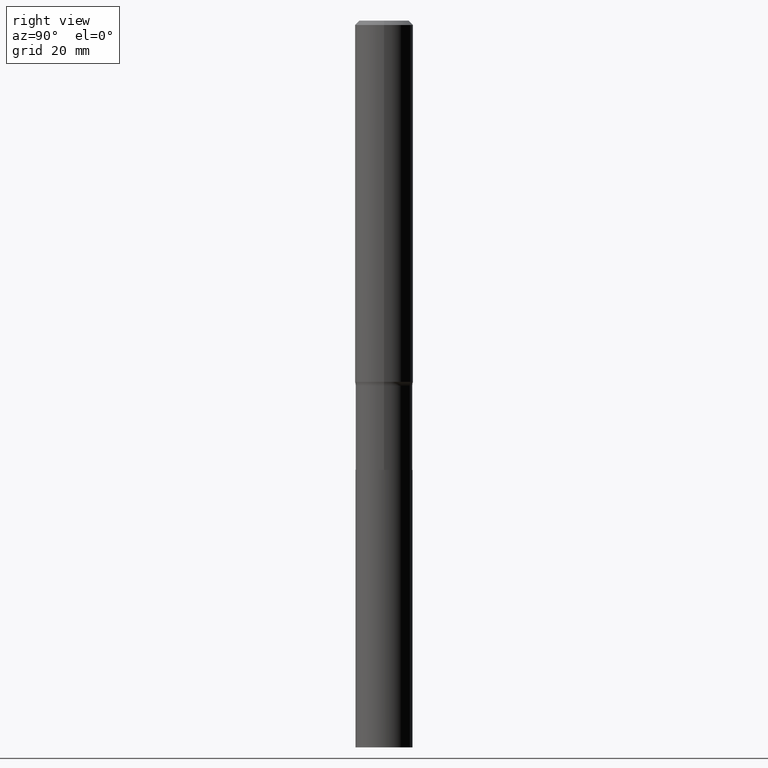
[diagram: clean part render]
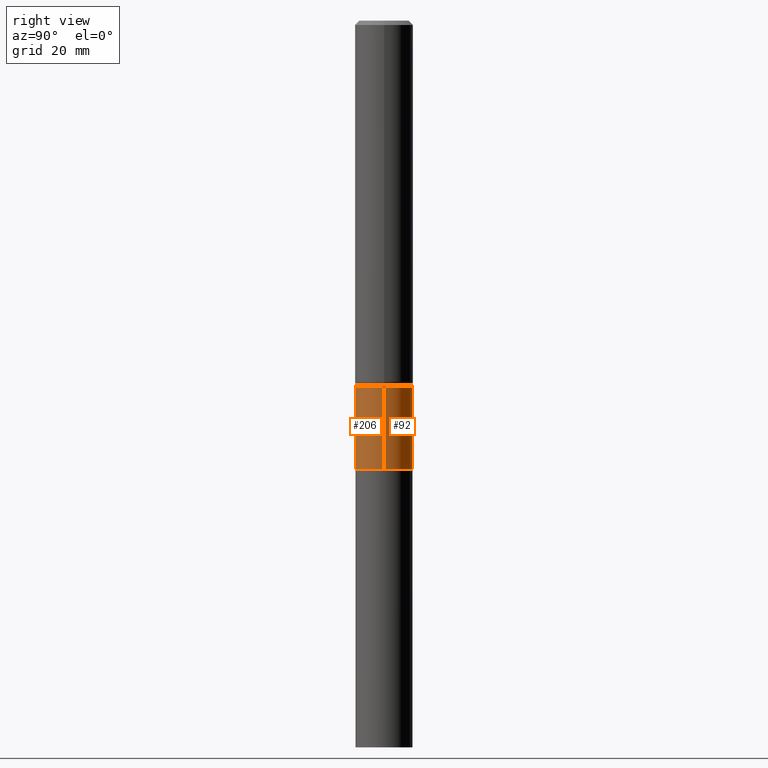
[diagram: same view with one multi-face feature highlighted, each face labeled with its STEP entity id]
A machine part, right view. The highlighted faces form ONE feature: a constant-radius fillet chain: 2 tangent blend faces with common blend radius 4.8997 mm. The faces share edges in the B-rep.
Their STEP definitions:
[1] entity #206 (Cylinder):
#1 = CARTESIAN_POINT ( 'NONE',  ( -0.1928999999999999049, -8.253980521373779940E-15, -2.471399999999999597 ) ) ;
#10 = ORIENTED_EDGE ( 'NONE', *, *, #228, .T. ) ;
#18 = VERTEX_POINT ( 'NONE', #1 ) ;
#19 = LINE ( 'NONE', #169, #68 ) ;
#33 = DIRECTION ( 'NONE',  ( -2.445468806185136597E-29, 3.491481338843145583E-15, 1.000000000000000000 ) ) ;
#44 = CIRCLE ( 'NONE', #335, 0.1928999999999999881 ) ;
#65 = DIRECTION ( 'NONE',  ( 1.000000000000000000, -6.982962677686267499E-15, 0.000000000000000000 ) ) ;
#67 = CARTESIAN_POINT ( 'NONE',  ( 7.438627014653946245E-29, -1.062038793649307721E-14, -3.041799999999999393 ) ) ;
#68 = VECTOR ( 'NONE', #345, 39.37007874015748143 ) ;
#77 = VERTEX_POINT ( 'NONE', #458 ) ;
#93 = FACE_OUTER_BOUND ( 'NONE', #372, .T. ) ;
#94 = VECTOR ( 'NONE', #309, 39.37007874015748143 ) ;
#104 = VERTEX_POINT ( 'NONE', #244 ) ;
#133 = EDGE_CURVE ( 'NONE', #104, #77, #414, .T. ) ;
#134 = CARTESIAN_POINT ( 'NONE',  ( 6.043731607605946476E-29, -8.628846980816948628E-15, -2.471399999999999597 ) ) ;
#136 = CARTESIAN_POINT ( 'NONE',  ( -0.1928999999999999881, -8.253980521373778363E-15, -3.041799999999999393 ) ) ;
#139 = ORIENTED_EDGE ( 'NONE', *, *, #416, .F. ) ;
#155 = VERTEX_POINT ( 'NONE', #136 ) ;
#167 = CARTESIAN_POINT ( 'NONE',  ( 0.1928999999999999326, -1.347013500525680471E-15, 9.406145000510357801E-30 ) ) ;
#169 = CARTESIAN_POINT ( 'NONE',  ( -0.1928999999999999326, 1.370636937281232780E-15, -9.488625789101710361E-30 ) ) ;
#184 = EDGE_CURVE ( 'NONE', #155, #18, #19, .T. ) ;
#188 = DIRECTION ( 'NONE',  ( 1.000000000000000000, -6.982962677686264344E-15, 0.000000000000000000 ) ) ;
#206 = ADVANCED_FACE ( 'NONE', ( #93 ), #279, .T. ) ;
#219 = DIRECTION ( 'NONE',  ( 1.000000000000000000, -6.982962677686267499E-15, 4.876176775795936353E-29 ) ) ;
#224 = AXIS2_PLACEMENT_3D ( 'NONE', #134, #421, #65 ) ;
#228 = EDGE_CURVE ( 'NONE', #155, #104, #44, .T. ) ;
#235 = ORIENTED_EDGE ( 'NONE', *, *, #184, .F. ) ;
#244 = CARTESIAN_POINT ( 'NONE',  ( 0.1928999999999999881, -1.196740143701875827E-14, -3.041799999999999393 ) ) ;
#279 = CYLINDRICAL_SURFACE ( 'NONE', #378, 0.1928999999999999326 ) ;
#287 = DIRECTION ( 'NONE',  ( -2.445468806185136597E-29, 3.491481338843145583E-15, 1.000000000000000000 ) ) ;
#309 = DIRECTION ( 'NONE',  ( -2.445468806185136877E-29, 3.491481338843145188E-15, 1.000000000000000000 ) ) ;
#335 = AXIS2_PLACEMENT_3D ( 'NONE', #67, #33, #188 ) ;
#345 = DIRECTION ( 'NONE',  ( -2.445468806185136877E-29, 3.491481338843145188E-15, 1.000000000000000000 ) ) ;
#372 = EDGE_LOOP ( 'NONE', ( #235, #10, #390, #139 ) ) ;
#378 = AXIS2_PLACEMENT_3D ( 'NONE', #398, #287, #219 ) ;
#390 = ORIENTED_EDGE ( 'NONE', *, *, #133, .T. ) ;
#398 = CARTESIAN_POINT ( 'NONE',  ( 0.000000000000000000, 0.000000000000000000, 0.000000000000000000 ) ) ;
#414 = LINE ( 'NONE', #167, #94 ) ;
#416 = EDGE_CURVE ( 'NONE', #18, #77, #423, .T. ) ;
#421 = DIRECTION ( 'NONE',  ( -2.445468806185136597E-29, 3.491481338843145583E-15, 1.000000000000000000 ) ) ;
#423 = CIRCLE ( 'NONE', #224, 0.1928999999999999049 ) ;
#458 = CARTESIAN_POINT ( 'NONE',  ( 0.1928999999999999049, -9.975860481342629691E-15, -2.471399999999999597 ) ) ;
[2] entity #92 (Cylinder):
#1 = CARTESIAN_POINT ( 'NONE',  ( -0.1928999999999999049, -8.253980521373779940E-15, -2.471399999999999597 ) ) ;
#18 = VERTEX_POINT ( 'NONE', #1 ) ;
#19 = LINE ( 'NONE', #169, #68 ) ;
#45 = ORIENTED_EDGE ( 'NONE', *, *, #184, .T. ) ;
#59 = EDGE_CURVE ( 'NONE', #77, #18, #130, .T. ) ;
#64 = ORIENTED_EDGE ( 'NONE', *, *, #265, .T. ) ;
#68 = VECTOR ( 'NONE', #345, 39.37007874015748143 ) ;
#77 = VERTEX_POINT ( 'NONE', #458 ) ;
#82 = ORIENTED_EDGE ( 'NONE', *, *, #59, .F. ) ;
#86 = AXIS2_PLACEMENT_3D ( 'NONE', #361, #328, #461 ) ;
#92 = ADVANCED_FACE ( 'NONE', ( #313 ), #239, .T. ) ;
#94 = VECTOR ( 'NONE', #309, 39.37007874015748143 ) ;
#104 = VERTEX_POINT ( 'NONE', #244 ) ;
#130 = CIRCLE ( 'NONE', #140, 0.1928999999999999049 ) ;
#131 = DIRECTION ( 'NONE',  ( 1.000000000000000000, -6.982962677686267499E-15, 0.000000000000000000 ) ) ;
#133 = EDGE_CURVE ( 'NONE', #104, #77, #414, .T. ) ;
#136 = CARTESIAN_POINT ( 'NONE',  ( -0.1928999999999999881, -8.253980521373778363E-15, -3.041799999999999393 ) ) ;
#140 = AXIS2_PLACEMENT_3D ( 'NONE', #163, #208, #131 ) ;
#155 = VERTEX_POINT ( 'NONE', #136 ) ;
#163 = CARTESIAN_POINT ( 'NONE',  ( 6.043731607605946476E-29, -8.628846980816948628E-15, -2.471399999999999597 ) ) ;
#167 = CARTESIAN_POINT ( 'NONE',  ( 0.1928999999999999326, -1.347013500525680471E-15, 9.406145000510357801E-30 ) ) ;
#169 = CARTESIAN_POINT ( 'NONE',  ( -0.1928999999999999326, 1.370636937281232780E-15, -9.488625789101710361E-30 ) ) ;
#184 = EDGE_CURVE ( 'NONE', #155, #18, #19, .T. ) ;
#185 = CIRCLE ( 'NONE', #86, 0.1928999999999999881 ) ;
#208 = DIRECTION ( 'NONE',  ( -2.445468806185136597E-29, 3.491481338843145583E-15, 1.000000000000000000 ) ) ;
#216 = EDGE_LOOP ( 'NONE', ( #64, #45, #82, #346 ) ) ;
#239 = CYLINDRICAL_SURFACE ( 'NONE', #407, 0.1928999999999999326 ) ;
#244 = CARTESIAN_POINT ( 'NONE',  ( 0.1928999999999999881, -1.196740143701875827E-14, -3.041799999999999393 ) ) ;
#265 = EDGE_CURVE ( 'NONE', #104, #155, #185, .T. ) ;
#276 = DIRECTION ( 'NONE',  ( -2.445468806185136597E-29, 3.491481338843145583E-15, 1.000000000000000000 ) ) ;
#309 = DIRECTION ( 'NONE',  ( -2.445468806185136877E-29, 3.491481338843145188E-15, 1.000000000000000000 ) ) ;
#313 = FACE_OUTER_BOUND ( 'NONE', #216, .T. ) ;
#328 = DIRECTION ( 'NONE',  ( -2.445468806185136597E-29, 3.491481338843145583E-15, 1.000000000000000000 ) ) ;
#345 = DIRECTION ( 'NONE',  ( -2.445468806185136877E-29, 3.491481338843145188E-15, 1.000000000000000000 ) ) ;
#346 = ORIENTED_EDGE ( 'NONE', *, *, #133, .F. ) ;
#361 = CARTESIAN_POINT ( 'NONE',  ( 7.438627014653946245E-29, -1.062038793649307721E-14, -3.041799999999999393 ) ) ;
#383 = DIRECTION ( 'NONE',  ( 1.000000000000000000, -6.982962677686267499E-15, 4.876176775795936353E-29 ) ) ;
#407 = AXIS2_PLACEMENT_3D ( 'NONE', #418, #276, #383 ) ;
#414 = LINE ( 'NONE', #167, #94 ) ;
#418 = CARTESIAN_POINT ( 'NONE',  ( 0.000000000000000000, 0.000000000000000000, 0.000000000000000000 ) ) ;
#458 = CARTESIAN_POINT ( 'NONE',  ( 0.1928999999999999049, -9.975860481342629691E-15, -2.471399999999999597 ) ) ;
#461 = DIRECTION ( 'NONE',  ( 1.000000000000000000, -6.982962677686264344E-15, 0.000000000000000000 ) ) ;